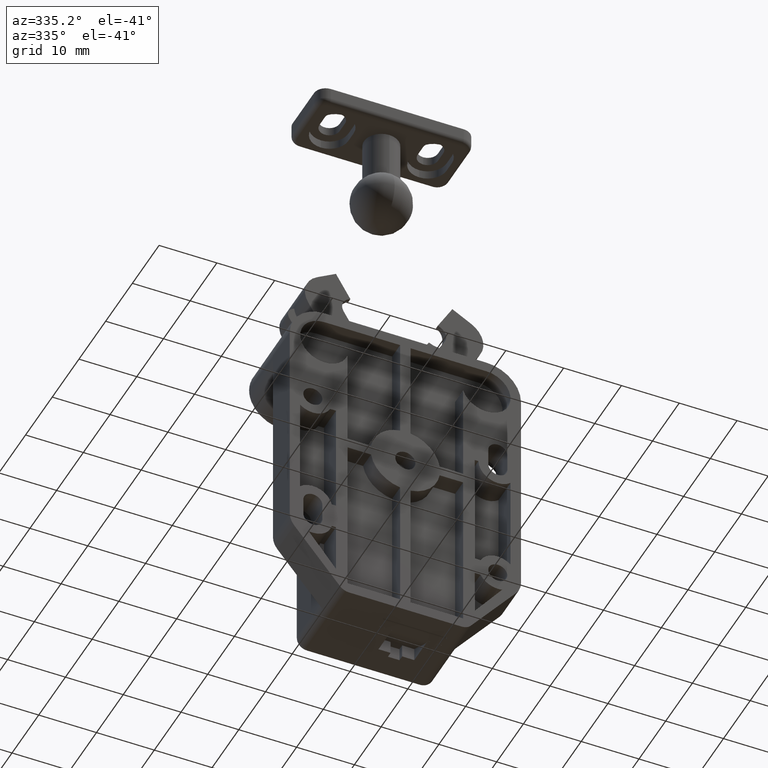
[diagram: clean part render]
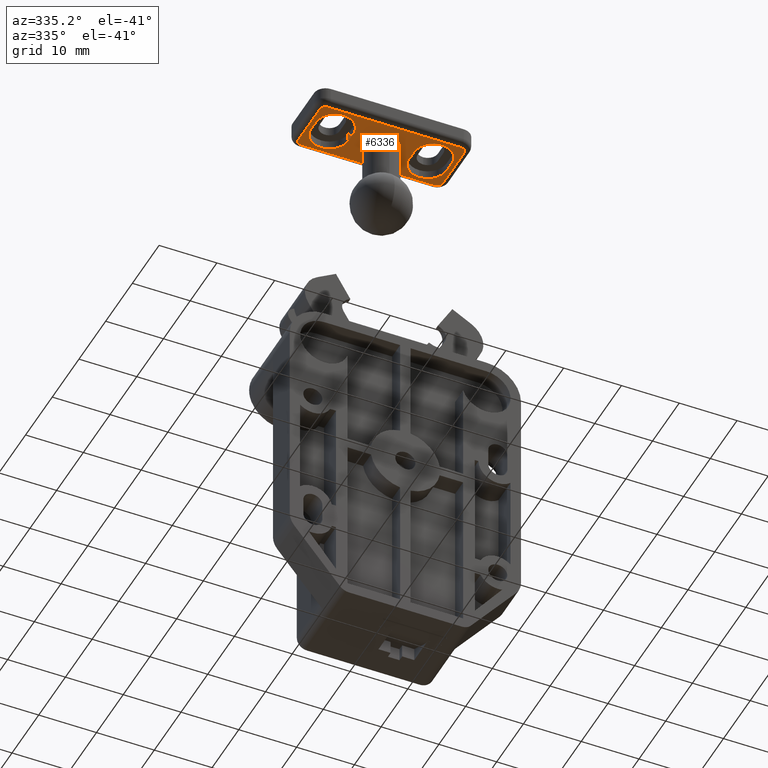
[diagram: same view with one face highlighted and labeled with its STEP entity id]
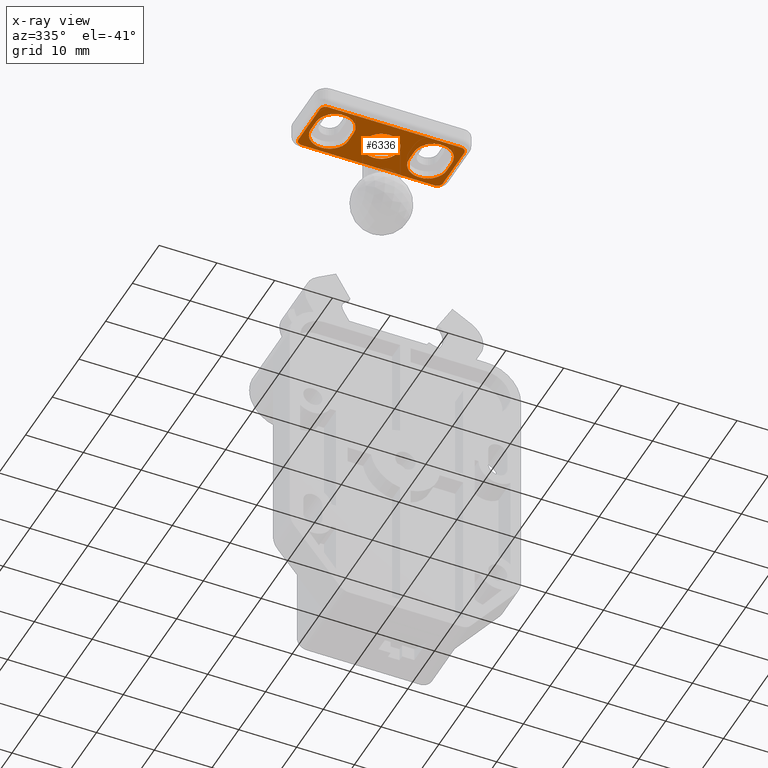
[diagram: x-ray of the same camera — body ghosted, the highlighted face saturated]
A machine part, auxiliary view. The second image highlights one B-rep face of the part: STEP entity #6336.
The next image is the same camera in x-ray: the body ghosted, the highlighted face saturated — about 1% of this face is hidden behind the body in this view.
In plain terms, the highlighted planar face has unit normal (-0, 0, -1).
Its self-contained STEP definition (entity closure, byte-faithful):
#58 = CARTESIAN_POINT ( 'NONE',  ( 119.1906854006601200, 132.2423681696272100, 11.99999999999993400 ) ) ;
#100 = CARTESIAN_POINT ( 'NONE',  ( 119.1906854006601200, 143.7423681696269900, 13.00000000000002000 ) ) ;
#122 = CIRCLE ( 'NONE', #8428, 1.000000000000000000 ) ;
#175 = CARTESIAN_POINT ( 'NONE',  ( 119.1906854006601200, 120.7423681696272000, 3.999999999999893400 ) ) ;
#222 = CARTESIAN_POINT ( 'NONE',  ( 119.1906854006601200, 143.9923681696269900, 9.999999999999889900 ) ) ;
#280 = CARTESIAN_POINT ( 'NONE',  ( 119.1906854006601200, 120.4923681696272000, 7.999999999999889000 ) ) ;
#384 = AXIS2_PLACEMENT_3D ( 'NONE', #3001, #7860, #3702 ) ;
#397 = DIRECTION ( 'NONE',  ( 0.0000000000000000000, 0.0000000000000000000, 1.000000000000000000 ) ) ;
#453 = AXIS2_PLACEMENT_3D ( 'NONE', #2452, #7307, #3154 ) ;
#505 = EDGE_CURVE ( 'NONE', #3365, #5328, #7010, .T. ) ;
#607 = ORIENTED_EDGE ( 'NONE', *, *, #2857, .T. ) ;
#620 = LINE ( 'NONE', #1885, #2221 ) ;
#655 = ORIENTED_EDGE ( 'NONE', *, *, #3466, .T. ) ;
#670 = DIRECTION ( 'NONE',  ( 0.0000000000000000000, 0.0000000000000000000, 1.000000000000000000 ) ) ;
#709 = DIRECTION ( 'NONE',  ( -1.000000000000000000, 0.0000000000000000000, 0.0000000000000000000 ) ) ;
#816 = DIRECTION ( 'NONE',  ( 0.0000000000000000000, 0.0000000000000000000, 1.000000000000000000 ) ) ;
#840 = AXIS2_PLACEMENT_3D ( 'NONE', #7363, #3214, #8077 ) ;
#917 = AXIS2_PLACEMENT_3D ( 'NONE', #1109, #5929, #1804 ) ;
#985 = DIRECTION ( 'NONE',  ( 1.000000000000000000, 0.0000000000000000000, 0.0000000000000000000 ) ) ;
#1109 = CARTESIAN_POINT ( 'NONE',  ( 119.1906854006601200, 123.7423681696272100, 9.999999999999889900 ) ) ;
#1321 = DIRECTION ( 'NONE',  ( -1.000000000000000000, 0.0000000000000000000, 0.0000000000000000000 ) ) ;
#1333 = LINE ( 'NONE', #2559, #8471 ) ;
#1399 = VECTOR ( 'NONE', #1827, 1000.000000000000000 ) ;
#1430 = FACE_OUTER_BOUND ( 'NONE', #8005, .T. ) ;
#1442 = DIRECTION ( 'NONE',  ( -0.0000000000000000000, -0.0000000000000000000, 1.000000000000000000 ) ) ;
#1545 = VERTEX_POINT ( 'NONE', #4396 ) ;
#1615 = VERTEX_POINT ( 'NONE', #2805 ) ;
#1624 = CARTESIAN_POINT ( 'NONE',  ( 119.1906854006601200, 143.7423681696269900, 3.999999999999889900 ) ) ;
#1678 = AXIS2_PLACEMENT_3D ( 'NONE', #3429, #709, #5521 ) ;
#1768 = CIRCLE ( 'NONE', #917, 3.249999999999898700 ) ;
#1786 = LINE ( 'NONE', #6904, #3461 ) ;
#1804 = DIRECTION ( 'NONE',  ( 0.0000000000000000000, 0.0000000000000000000, 1.000000000000000000 ) ) ;
#1827 = DIRECTION ( 'NONE',  ( 0.0000000000000000000, 0.0000000000000000000, -1.000000000000000000 ) ) ;
#1883 = EDGE_CURVE ( 'NONE', #5328, #6756, #1786, .T. ) ;
#1885 = CARTESIAN_POINT ( 'NONE',  ( 119.1906854006601200, 143.7423681696269900, 14.00000000000002000 ) ) ;
#1924 = ORIENTED_EDGE ( 'NONE', *, *, #2202, .F. ) ;
#2119 = DIRECTION ( 'NONE',  ( 1.000000000000000000, 0.0000000000000000000, 0.0000000000000000000 ) ) ;
#2183 = VERTEX_POINT ( 'NONE', #7660 ) ;
#2194 = CIRCLE ( 'NONE', #4468, 3.249999999999898700 ) ;
#2202 = EDGE_CURVE ( 'NONE', #6756, #5112, #2194, .T. ) ;
#2209 = CARTESIAN_POINT ( 'NONE',  ( 119.1906854006601200, 119.7423681696272000, 13.00000000000002100 ) ) ;
#2211 = EDGE_CURVE ( 'NONE', #1545, #3593, #4239, .T. ) ;
#2221 = VECTOR ( 'NONE', #7408, 1000.000000000000000 ) ;
#2420 = CIRCLE ( 'NONE', #840, 3.249999999999891600 ) ;
#2452 = CARTESIAN_POINT ( 'NONE',  ( 119.1906854006601200, 120.7423681696272000, 4.999999999999894300 ) ) ;
#2513 = VECTOR ( 'NONE', #5052, 1000.000000000000000 ) ;
#2559 = CARTESIAN_POINT ( 'NONE',  ( 119.1906854006601200, 120.7423681696272000, 3.999999999999893400 ) ) ;
#2629 = AXIS2_PLACEMENT_3D ( 'NONE', #4256, #3712, #5040 ) ;
#2634 = CIRCLE ( 'NONE', #2919, 2.999999999999935200 ) ;
#2644 = VERTEX_POINT ( 'NONE', #8933 ) ;
#2765 = VECTOR ( 'NONE', #1442, 1000.000000000000000 ) ;
#2766 = EDGE_CURVE ( 'NONE', #6187, #5995, #3212, .T. ) ;
#2805 = CARTESIAN_POINT ( 'NONE',  ( 119.1906854006601200, 144.7423681696269900, 4.999999999999889900 ) ) ;
#2844 = CARTESIAN_POINT ( 'NONE',  ( 119.1906854006601200, 132.2423681696272100, 6.000000000000063900 ) ) ;
#2857 = EDGE_CURVE ( 'NONE', #3593, #1615, #3734, .T. ) ;
#2860 = CARTESIAN_POINT ( 'NONE',  ( 119.1906854006601200, 123.7423681696272100, 9.999999999999889900 ) ) ;
#2919 = AXIS2_PLACEMENT_3D ( 'NONE', #6255, #2119, #6960 ) ;
#2964 = CARTESIAN_POINT ( 'NONE',  ( 119.1906854006601200, 144.7423681696269900, 4.999999999999889900 ) ) ;
#3001 = CARTESIAN_POINT ( 'NONE',  ( 119.1906854006601200, 140.7423681696271800, 9.999999999999889900 ) ) ;
#3055 = ORIENTED_EDGE ( 'NONE', *, *, #505, .F. ) ;
#3134 = CARTESIAN_POINT ( 'NONE',  ( 119.1906854006601200, 126.9923681696270000, 7.999999999999889000 ) ) ;
#3148 = EDGE_CURVE ( 'NONE', #7009, #3810, #7326, .T. ) ;
#3154 = DIRECTION ( 'NONE',  ( 0.0000000000000000000, 0.0000000000000000000, 1.000000000000000000 ) ) ;
#3212 = LINE ( 'NONE', #4228, #2765 ) ;
#3214 = DIRECTION ( 'NONE',  ( -1.000000000000000000, 0.0000000000000000000, 0.0000000000000000000 ) ) ;
#3250 = EDGE_CURVE ( 'NONE', #2183, #2644, #4602, .T. ) ;
#3267 = FACE_BOUND ( 'NONE', #3453, .T. ) ;
#3277 = VERTEX_POINT ( 'NONE', #1624 ) ;
#3360 = EDGE_CURVE ( 'NONE', #5995, #6623, #6776, .T. ) ;
#3365 = VERTEX_POINT ( 'NONE', #3134 ) ;
#3372 = ORIENTED_EDGE ( 'NONE', *, *, #7098, .T. ) ;
#3429 = CARTESIAN_POINT ( 'NONE',  ( 119.1906854006601200, 0.0000000000000000000, 0.0000000000000000000 ) ) ;
#3453 = EDGE_LOOP ( 'NONE', ( #7310, #5422 ) ) ;
#3461 = VECTOR ( 'NONE', #4591, 1000.000000000000000 ) ;
#3466 = EDGE_CURVE ( 'NONE', #6623, #1545, #620, .T. ) ;
#3503 = CARTESIAN_POINT ( 'NONE',  ( 119.1906854006601200, 123.7423681696272100, 13.24999999999978900 ) ) ;
#3532 = DIRECTION ( 'NONE',  ( 0.0000000000000000000, 0.0000000000000000000, 1.000000000000000000 ) ) ;
#3593 = VERTEX_POINT ( 'NONE', #5461 ) ;
#3702 = DIRECTION ( 'NONE',  ( 0.0000000000000000000, 0.0000000000000000000, 1.000000000000000000 ) ) ;
#3712 = DIRECTION ( 'NONE',  ( -1.000000000000000000, 0.0000000000000000000, 0.0000000000000000000 ) ) ;
#3734 = LINE ( 'NONE', #2964, #3960 ) ;
#3766 = ORIENTED_EDGE ( 'NONE', *, *, #3148, .F. ) ;
#3810 = VERTEX_POINT ( 'NONE', #6382 ) ;
#3848 = EDGE_LOOP ( 'NONE', ( #7176, #4943, #4649, #8101, #3766 ) ) ;
#3957 = AXIS2_PLACEMENT_3D ( 'NONE', #5123, #985, #5805 ) ;
#3960 = VECTOR ( 'NONE', #7813, 1000.000000000000000 ) ;
#4125 = LINE ( 'NONE', #222, #2513 ) ;
#4210 = CARTESIAN_POINT ( 'NONE',  ( 119.1906854006601200, 120.4923681696272000, 9.999999999999889900 ) ) ;
#4228 = CARTESIAN_POINT ( 'NONE',  ( 119.1906854006601200, 119.7423681696272000, 13.00000000000002100 ) ) ;
#4239 = CIRCLE ( 'NONE', #5392, 0.9999999999999991100 ) ;
#4256 = CARTESIAN_POINT ( 'NONE',  ( 119.1906854006601200, 123.7423681696272100, 7.999999999999889000 ) ) ;
#4347 = EDGE_LOOP ( 'NONE', ( #3055, #6472, #7060, #1924, #8021 ) ) ;
#4396 = CARTESIAN_POINT ( 'NONE',  ( 119.1906854006601200, 143.7423681696269900, 14.00000000000002000 ) ) ;
#4414 = VERTEX_POINT ( 'NONE', #5029 ) ;
#4468 = AXIS2_PLACEMENT_3D ( 'NONE', #2860, #7693, #3532 ) ;
#4474 = EDGE_CURVE ( 'NONE', #5962, #5963, #7305, .T. ) ;
#4509 = DIRECTION ( 'NONE',  ( -1.000000000000000000, 0.0000000000000000000, 0.0000000000000000000 ) ) ;
#4520 = CARTESIAN_POINT ( 'NONE',  ( 119.1906854006601200, 137.4923681696272100, 7.999999999999889000 ) ) ;
#4591 = DIRECTION ( 'NONE',  ( 0.0000000000000000000, 0.0000000000000000000, 1.000000000000000000 ) ) ;
#4602 = CIRCLE ( 'NONE', #384, 3.249999999999891600 ) ;
#4649 = ORIENTED_EDGE ( 'NONE', *, *, #3250, .F. ) ;
#4754 = ORIENTED_EDGE ( 'NONE', *, *, #2211, .T. ) ;
#4797 = DIRECTION ( 'NONE',  ( -1.000000000000000000, 0.0000000000000000000, 0.0000000000000000000 ) ) ;
#4839 = LINE ( 'NONE', #5955, #1399 ) ;
#4867 = EDGE_CURVE ( 'NONE', #3810, #2183, #2420, .T. ) ;
#4874 = FACE_BOUND ( 'NONE', #3848, .T. ) ;
#4937 = DIRECTION ( 'NONE',  ( -1.000000000000000000, 0.0000000000000000000, 0.0000000000000000000 ) ) ;
#4943 = ORIENTED_EDGE ( 'NONE', *, *, #5478, .F. ) ;
#4985 = ORIENTED_EDGE ( 'NONE', *, *, #8859, .T. ) ;
#5006 = AXIS2_PLACEMENT_3D ( 'NONE', #8689, #4509, #397 ) ;
#5029 = CARTESIAN_POINT ( 'NONE',  ( 119.1906854006601200, 126.9923681696271100, 9.999999999999889900 ) ) ;
#5040 = DIRECTION ( 'NONE',  ( 0.0000000000000000000, 0.0000000000000000000, 1.000000000000000000 ) ) ;
#5052 = DIRECTION ( 'NONE',  ( 0.0000000000000000000, 0.0000000000000000000, -1.000000000000000000 ) ) ;
#5059 = ORIENTED_EDGE ( 'NONE', *, *, #2766, .T. ) ;
#5112 = VERTEX_POINT ( 'NONE', #3503 ) ;
#5123 = CARTESIAN_POINT ( 'NONE',  ( 119.1906854006601200, 132.2423681696272100, 9.000000000000000000 ) ) ;
#5328 = VERTEX_POINT ( 'NONE', #280 ) ;
#5329 = ORIENTED_EDGE ( 'NONE', *, *, #6074, .T. ) ;
#5392 = AXIS2_PLACEMENT_3D ( 'NONE', #100, #4937, #816 ) ;
#5422 = ORIENTED_EDGE ( 'NONE', *, *, #5924, .T. ) ;
#5436 = CIRCLE ( 'NONE', #453, 1.000000000000000000 ) ;
#5453 = CARTESIAN_POINT ( 'NONE',  ( 119.1906854006601200, 140.7423681696271800, 7.999999999999889000 ) ) ;
#5461 = CARTESIAN_POINT ( 'NONE',  ( 119.1906854006601200, 144.7423681696269900, 13.00000000000002000 ) ) ;
#5478 = EDGE_CURVE ( 'NONE', #2644, #5932, #4125, .T. ) ;
#5521 = DIRECTION ( 'NONE',  ( 0.0000000000000000000, 0.0000000000000000000, 1.000000000000000000 ) ) ;
#5557 = CARTESIAN_POINT ( 'NONE',  ( 119.1906854006601200, 143.9923681696269900, 7.999999999999889000 ) ) ;
#5641 = ORIENTED_EDGE ( 'NONE', *, *, #3360, .T. ) ;
#5805 = DIRECTION ( 'NONE',  ( 0.0000000000000000000, 0.0000000000000000000, -1.000000000000000000 ) ) ;
#5820 = EDGE_CURVE ( 'NONE', #5932, #7009, #8821, .T. ) ;
#5924 = EDGE_CURVE ( 'NONE', #5963, #5962, #2634, .T. ) ;
#5929 = DIRECTION ( 'NONE',  ( -1.000000000000000000, 0.0000000000000000000, 0.0000000000000000000 ) ) ;
#5932 = VERTEX_POINT ( 'NONE', #5557 ) ;
#5955 = CARTESIAN_POINT ( 'NONE',  ( 119.1906854006601200, 126.9923681696270000, 9.999999999999889900 ) ) ;
#5962 = VERTEX_POINT ( 'NONE', #58 ) ;
#5963 = VERTEX_POINT ( 'NONE', #2844 ) ;
#5995 = VERTEX_POINT ( 'NONE', #2209 ) ;
#6019 = CARTESIAN_POINT ( 'NONE',  ( 119.1906854006601200, 137.4923681696272100, 7.999999999999889000 ) ) ;
#6074 = EDGE_CURVE ( 'NONE', #6507, #6187, #5436, .T. ) ;
#6102 = EDGE_CURVE ( 'NONE', #5112, #4414, #1768, .T. ) ;
#6140 = DIRECTION ( 'NONE',  ( 0.0000000000000000000, 0.0000000000000000000, 1.000000000000000000 ) ) ;
#6187 = VERTEX_POINT ( 'NONE', #6712 ) ;
#6255 = CARTESIAN_POINT ( 'NONE',  ( 119.1906854006601200, 132.2423681696272100, 9.000000000000000000 ) ) ;
#6336 = ADVANCED_FACE ( 'NONE', ( #1430, #4874, #6722, #3267 ), #8298, .T. ) ;
#6382 = CARTESIAN_POINT ( 'NONE',  ( 119.1906854006601200, 137.4923681696272100, 9.999999999999889900 ) ) ;
#6472 = ORIENTED_EDGE ( 'NONE', *, *, #8674, .F. ) ;
#6507 = VERTEX_POINT ( 'NONE', #175 ) ;
#6623 = VERTEX_POINT ( 'NONE', #8634 ) ;
#6712 = CARTESIAN_POINT ( 'NONE',  ( 119.1906854006601200, 119.7423681696272000, 4.999999999999894300 ) ) ;
#6714 = DIRECTION ( 'NONE',  ( 0.0000000000000000000, 0.0000000000000000000, 1.000000000000000000 ) ) ;
#6722 = FACE_BOUND ( 'NONE', #4347, .T. ) ;
#6756 = VERTEX_POINT ( 'NONE', #4210 ) ;
#6776 = CIRCLE ( 'NONE', #5006, 0.9999999999999991100 ) ;
#6878 = VECTOR ( 'NONE', #6714, 1000.000000000000000 ) ;
#6904 = CARTESIAN_POINT ( 'NONE',  ( 119.1906854006601200, 120.4923681696272000, 7.999999999999889000 ) ) ;
#6960 = DIRECTION ( 'NONE',  ( 0.0000000000000000000, 0.0000000000000000000, -1.000000000000000000 ) ) ;
#7009 = VERTEX_POINT ( 'NONE', #4520 ) ;
#7010 = CIRCLE ( 'NONE', #2629, 3.249999999999898700 ) ;
#7060 = ORIENTED_EDGE ( 'NONE', *, *, #6102, .F. ) ;
#7098 = EDGE_CURVE ( 'NONE', #3277, #6507, #1333, .T. ) ;
#7176 = ORIENTED_EDGE ( 'NONE', *, *, #5820, .F. ) ;
#7305 = CIRCLE ( 'NONE', #3957, 2.999999999999935200 ) ;
#7307 = DIRECTION ( 'NONE',  ( -1.000000000000000000, 0.0000000000000000000, 0.0000000000000000000 ) ) ;
#7310 = ORIENTED_EDGE ( 'NONE', *, *, #4474, .T. ) ;
#7326 = LINE ( 'NONE', #6019, #6878 ) ;
#7363 = CARTESIAN_POINT ( 'NONE',  ( 119.1906854006601200, 140.7423681696271800, 9.999999999999889900 ) ) ;
#7408 = DIRECTION ( 'NONE',  ( -0.0000000000000000000, 1.000000000000000000, -0.0000000000000000000 ) ) ;
#7416 = DIRECTION ( 'NONE',  ( -0.0000000000000000000, -1.000000000000000000, 1.766847984791206400E-016 ) ) ;
#7660 = CARTESIAN_POINT ( 'NONE',  ( 119.1906854006601200, 140.7423681696271800, 13.24999999999978200 ) ) ;
#7693 = DIRECTION ( 'NONE',  ( -1.000000000000000000, 0.0000000000000000000, 0.0000000000000000000 ) ) ;
#7746 = AXIS2_PLACEMENT_3D ( 'NONE', #5453, #1321, #6140 ) ;
#7813 = DIRECTION ( 'NONE',  ( -0.0000000000000000000, 0.0000000000000000000, -1.000000000000000000 ) ) ;
#7860 = DIRECTION ( 'NONE',  ( -1.000000000000000000, 0.0000000000000000000, 0.0000000000000000000 ) ) ;
#8005 = EDGE_LOOP ( 'NONE', ( #5329, #5059, #5641, #655, #4754, #607, #4985, #3372 ) ) ;
#8021 = ORIENTED_EDGE ( 'NONE', *, *, #1883, .F. ) ;
#8077 = DIRECTION ( 'NONE',  ( 0.0000000000000000000, 0.0000000000000000000, 1.000000000000000000 ) ) ;
#8101 = ORIENTED_EDGE ( 'NONE', *, *, #4867, .F. ) ;
#8298 = PLANE ( 'NONE',  #1678 ) ;
#8428 = AXIS2_PLACEMENT_3D ( 'NONE', #8962, #4797, #670 ) ;
#8471 = VECTOR ( 'NONE', #7416, 1000.000000000000000 ) ;
#8634 = CARTESIAN_POINT ( 'NONE',  ( 119.1906854006601200, 120.7423681696272000, 14.00000000000002000 ) ) ;
#8674 = EDGE_CURVE ( 'NONE', #4414, #3365, #4839, .T. ) ;
#8689 = CARTESIAN_POINT ( 'NONE',  ( 119.1906854006601200, 120.7423681696272000, 13.00000000000002000 ) ) ;
#8821 = CIRCLE ( 'NONE', #7746, 3.249999999999891600 ) ;
#8859 = EDGE_CURVE ( 'NONE', #1615, #3277, #122, .T. ) ;
#8933 = CARTESIAN_POINT ( 'NONE',  ( 119.1906854006601200, 143.9923681696270700, 9.999999999999889900 ) ) ;
#8962 = CARTESIAN_POINT ( 'NONE',  ( 119.1906854006601200, 143.7423681696269900, 4.999999999999889900 ) ) ;